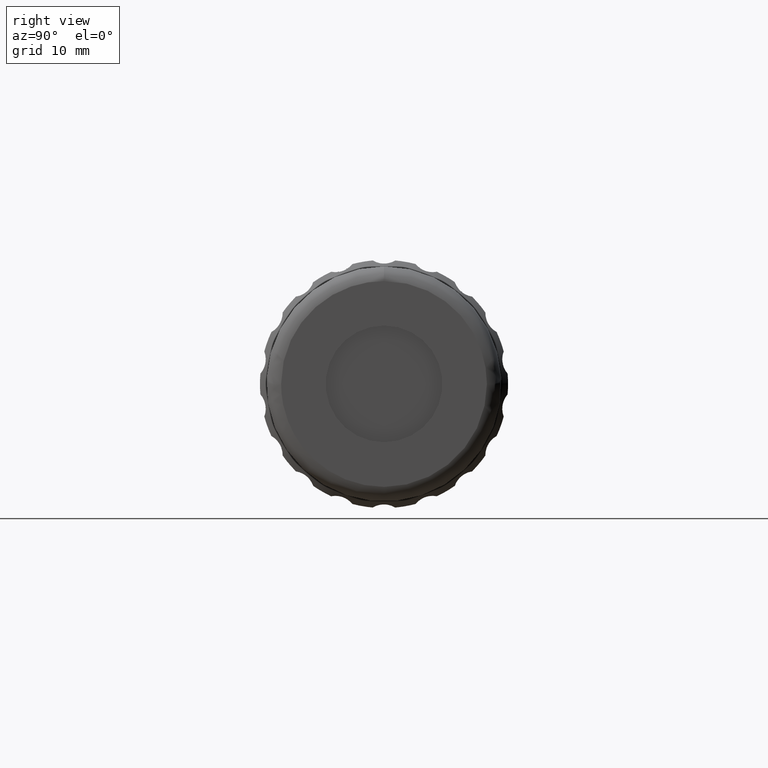
[diagram: clean part render]
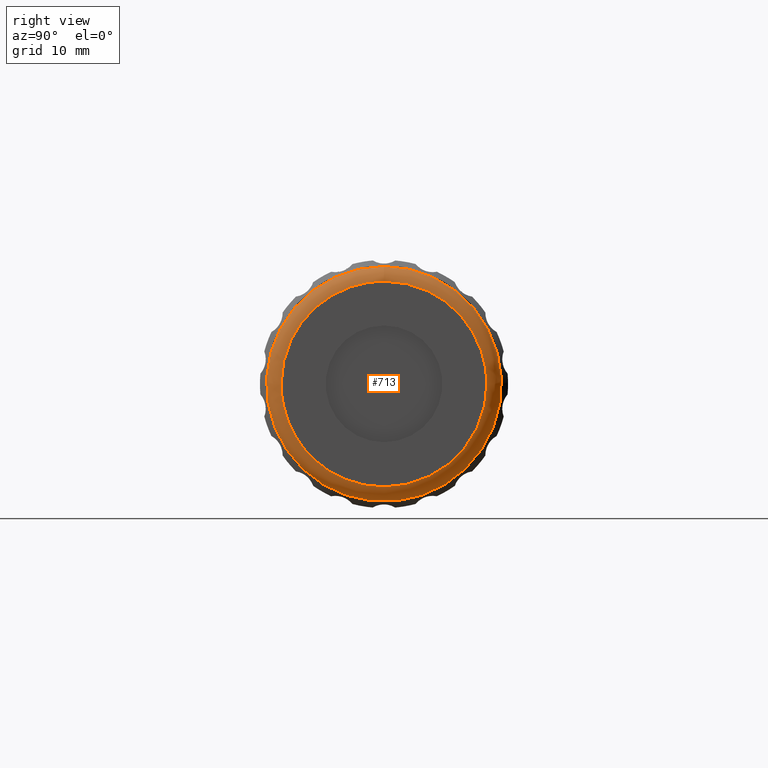
[diagram: same view with one face highlighted and labeled with its STEP entity id]
A machine part, right view. The second image highlights one B-rep face of the part: STEP entity #713.
In plain terms, the highlighted face is a freeform B-spline surface patch.
Its self-contained STEP definition (entity closure, byte-faithful):
#3 = CARTESIAN_POINT ( 'NONE',  ( 95.33704000000001599, 60.12096199999999868, 0.000000000000000000 ) ) ;
#38 = EDGE_CURVE ( 'NONE', #1662, #1408, #1439, .T. ) ;
#60 =( BOUNDED_CURVE ( )  B_SPLINE_CURVE ( 3, ( #256, #1105, #2016, #478 ),
 .UNSPECIFIED., .F., .T. ) 
 B_SPLINE_CURVE_WITH_KNOTS ( ( 4, 4 ),
 ( 0.000000000000000000, 1.000000000000000000 ),
 .UNSPECIFIED. ) 
 CURVE ( )  GEOMETRIC_REPRESENTATION_ITEM ( )  RATIONAL_B_SPLINE_CURVE ( ( 1.000000000000000000, 0.8047378541243649375, 0.8047378541243649375, 1.000000000000000000 ) ) 
 REPRESENTATION_ITEM ( '' )  );
#69 = EDGE_CURVE ( 'NONE', #1408, #157, #528, .T. ) ;
#117 = CARTESIAN_POINT ( 'NONE',  ( 94.50861287525381726, 29.92096199999999584, -32.20000000000000284 ) ) ;
#138 = CARTESIAN_POINT ( 'NONE',  ( 95.33703999999998757, 30.74938912474618391, 30.54314575050763025 ) ) ;
#157 = VERTEX_POINT ( 'NONE', #1452 ) ;
#208 = CARTESIAN_POINT ( 'NONE',  ( 95.33704000000001599, 60.12096200000000579, -28.19999999999999929 ) ) ;
#223 =( BOUNDED_SURFACE ( )  B_SPLINE_SURFACE ( 3, 3, ( 
 ( #1167, #1339, #1813, #471, #1692, #1002, #969 ),
 ( #805, #1158, #117, #2208, #662, #1851, #309 ),
 ( #2168, #494, #2047, #1487, #138, #2177, #624 ),
 ( #637, #795, #826, #2036, #1306, #989, #1513 ) ),
 .UNSPECIFIED., .F., .T., .T. ) 
 B_SPLINE_SURFACE_WITH_KNOTS ( ( 4, 4 ),
 ( 4, 3, 4 ),
 ( 0.000000000000000000, 1.000000000000000000 ),
 ( 0.000000000000000000, 0.5000000000000000000, 1.000000000000000000 ),
 .UNSPECIFIED. ) 
 GEOMETRIC_REPRESENTATION_ITEM ( )  RATIONAL_B_SPLINE_SURFACE ( (
 ( 1.000000000000000000, 0.3333333333333333148, 0.3333333333333333148, 1.000000000000000000, 0.3333333333333333148, 0.3333333333333333148, 1.000000000000000000),
 ( 0.8047378541243649375, 0.2682459513747882940, 0.2682459513747882940, 0.8047378541243649375, 0.2682459513747882940, 0.2682459513747882940, 0.8047378541243649375),
 ( 0.8047378541243649375, 0.2682459513747882940, 0.2682459513747882940, 0.8047378541243649375, 0.2682459513747882940, 0.2682459513747882940, 0.8047378541243649375),
 ( 1.000000000000000000, 0.3333333333333333148, 0.3333333333333333148, 1.000000000000000000, 0.3333333333333333148, 0.3333333333333333148, 1.000000000000000000) ) ) 
 REPRESENTATION_ITEM ( '' )  SURFACE ( )  );
#256 = CARTESIAN_POINT ( 'NONE',  ( 95.33704000000001599, 46.02096199999999726, 14.10000000000000142 ) ) ;
#285 = FACE_OUTER_BOUND ( 'NONE', #1715, .T. ) ;
#309 = CARTESIAN_POINT ( 'NONE',  ( 94.50861287525381726, 62.12096199999999868, 0.000000000000000000 ) ) ;
#370 = CARTESIAN_POINT ( 'NONE',  ( 95.33704000000000178, 31.92096199999999584, 8.259588770539357583 ) ) ;
#411 = EDGE_CURVE ( 'NONE', #157, #1662, #60, .T. ) ;
#449 = ORIENTED_EDGE ( 'NONE', *, *, #38, .T. ) ;
#471 = CARTESIAN_POINT ( 'NONE',  ( 93.33704000000001599, 29.92096199999999584, 0.000000000000000000 ) ) ;
#478 = CARTESIAN_POINT ( 'NONE',  ( 95.33704000000001599, 60.12096199999999868, 0.000000000000000000 ) ) ;
#482 = FACE_OUTER_BOUND ( 'NONE', #786, .T. ) ;
#494 = CARTESIAN_POINT ( 'NONE',  ( 95.33703999999998757, 61.29253487525381416, -30.54314575050762315 ) ) ;
#528 =( BOUNDED_CURVE ( )  B_SPLINE_CURVE ( 3, ( #1743, #370, #716, #2087 ),
 .UNSPECIFIED., .F., .F. ) 
 B_SPLINE_CURVE_WITH_KNOTS ( ( 4, 4 ),
 ( 0.000000000000000000, 1.000000000000000000 ),
 .UNSPECIFIED. ) 
 CURVE ( )  GEOMETRIC_REPRESENTATION_ITEM ( )  RATIONAL_B_SPLINE_CURVE ( ( 1.000000000000000000, 0.8047378541243649375, 0.8047378541243649375, 1.000000000000000000 ) ) 
 REPRESENTATION_ITEM ( '' )  );
#624 = CARTESIAN_POINT ( 'NONE',  ( 95.33704000000000178, 61.29253487525379995, 0.000000000000000000 ) ) ;
#637 = CARTESIAN_POINT ( 'NONE',  ( 95.33704000000001599, 60.12096199999999868, 0.000000000000000000 ) ) ;
#662 = CARTESIAN_POINT ( 'NONE',  ( 94.50861287525381726, 29.92096199999999584, 32.20000000000000284 ) ) ;
#713 = ADVANCED_FACE ( 'NONE', ( #285, #482 ), #223, .T. ) ;
#716 = CARTESIAN_POINT ( 'NONE',  ( 95.33704000000000178, 37.76137322946063790, 14.09999999999999964 ) ) ;
#725 = CARTESIAN_POINT ( 'NONE',  ( 95.33704000000001599, 60.12096199999999868, 0.000000000000000000 ) ) ;
#786 = EDGE_LOOP ( 'NONE', ( #1998 ) ) ;
#795 = CARTESIAN_POINT ( 'NONE',  ( 95.33704000000001599, 60.12096199999999868, -28.20000000000000284 ) ) ;
#805 = CARTESIAN_POINT ( 'NONE',  ( 94.50861287525381726, 62.12096199999999868, 0.000000000000000000 ) ) ;
#826 = CARTESIAN_POINT ( 'NONE',  ( 95.33704000000001599, 31.92096199999999229, -28.20000000000000284 ) ) ;
#849 = CARTESIAN_POINT ( 'NONE',  ( 95.33704000000001599, 31.92096199999999584, -1.036051192078660836E-15 ) ) ;
#857 = DIRECTION ( 'NONE',  ( -1.000000000000000000, 0.000000000000000000, 0.000000000000000000 ) ) ;
#860 = ORIENTED_EDGE ( 'NONE', *, *, #411, .T. ) ;
#894 = CARTESIAN_POINT ( 'NONE',  ( 95.33704000000001599, 31.92096199999999584, -28.19999999999999929 ) ) ;
#969 = CARTESIAN_POINT ( 'NONE',  ( 93.33704000000001599, 62.12096199999999868, 0.000000000000000000 ) ) ;
#970 = ORIENTED_EDGE ( 'NONE', *, *, #69, .T. ) ;
#989 = CARTESIAN_POINT ( 'NONE',  ( 95.33704000000001599, 60.12096199999999868, 28.20000000000000284 ) ) ;
#1002 = CARTESIAN_POINT ( 'NONE',  ( 93.33704000000000178, 62.12096200000000579, 32.20000000000000284 ) ) ;
#1018 = CARTESIAN_POINT ( 'NONE',  ( 93.33704000000001599, 46.02096199999999726, 0.000000000000000000 ) ) ;
#1105 = CARTESIAN_POINT ( 'NONE',  ( 95.33704000000000178, 54.28055077053935662, 14.09999999999999964 ) ) ;
#1158 = CARTESIAN_POINT ( 'NONE',  ( 94.50861287525381726, 62.12096199999999868, -32.20000000000000284 ) ) ;
#1167 = CARTESIAN_POINT ( 'NONE',  ( 93.33704000000001599, 62.12096199999999868, 0.000000000000000000 ) ) ;
#1209 = CIRCLE ( 'NONE', #1423, 16.10000000000000142 ) ;
#1306 = CARTESIAN_POINT ( 'NONE',  ( 95.33704000000001599, 31.92096199999999229, 28.20000000000000284 ) ) ;
#1339 = CARTESIAN_POINT ( 'NONE',  ( 93.33704000000000178, 62.12096200000000579, -32.20000000000000284 ) ) ;
#1408 = VERTEX_POINT ( 'NONE', #1606 ) ;
#1423 = AXIS2_PLACEMENT_3D ( 'NONE', #1018, #857, #1541 ) ;
#1439 =( BOUNDED_CURVE ( )  B_SPLINE_CURVE ( 3, ( #725, #208, #894, #849 ),
 .UNSPECIFIED., .F., .F. ) 
 B_SPLINE_CURVE_WITH_KNOTS ( ( 4, 4 ),
 ( 0.000000000000000000, 1.000000000000000000 ),
 .UNSPECIFIED. ) 
 CURVE ( )  GEOMETRIC_REPRESENTATION_ITEM ( )  RATIONAL_B_SPLINE_CURVE ( ( 1.000000000000000000, 0.3333333333333333703, 0.3333333333333333703, 1.000000000000000000 ) ) 
 REPRESENTATION_ITEM ( '' )  );
#1452 = CARTESIAN_POINT ( 'NONE',  ( 95.33704000000001599, 46.02096199999999726, 14.10000000000000142 ) ) ;
#1487 = CARTESIAN_POINT ( 'NONE',  ( 95.33704000000000178, 30.74938912474618391, 0.000000000000000000 ) ) ;
#1513 = CARTESIAN_POINT ( 'NONE',  ( 95.33704000000001599, 60.12096199999999868, 0.000000000000000000 ) ) ;
#1541 = DIRECTION ( 'NONE',  ( 0.000000000000000000, 0.000000000000000000, 1.000000000000000000 ) ) ;
#1582 = VERTEX_POINT ( 'NONE', #1724 ) ;
#1606 = CARTESIAN_POINT ( 'NONE',  ( 95.33704000000001599, 31.92096199999999584, -1.036051192078660836E-15 ) ) ;
#1662 = VERTEX_POINT ( 'NONE', #3 ) ;
#1692 = CARTESIAN_POINT ( 'NONE',  ( 93.33704000000000178, 29.92096199999999584, 32.20000000000000284 ) ) ;
#1693 = EDGE_CURVE ( 'NONE', #1582, #1582, #1209, .T. ) ;
#1715 = EDGE_LOOP ( 'NONE', ( #860, #449, #970 ) ) ;
#1724 = CARTESIAN_POINT ( 'NONE',  ( 93.33704000000001599, 46.02096199999999726, 16.10000000000000142 ) ) ;
#1743 = CARTESIAN_POINT ( 'NONE',  ( 95.33704000000001599, 31.92096199999999584, -1.036051192078660836E-15 ) ) ;
#1813 = CARTESIAN_POINT ( 'NONE',  ( 93.33704000000000178, 29.92096199999999584, -32.20000000000000284 ) ) ;
#1851 = CARTESIAN_POINT ( 'NONE',  ( 94.50861287525381726, 62.12096199999999868, 32.20000000000000284 ) ) ;
#1998 = ORIENTED_EDGE ( 'NONE', *, *, #1693, .F. ) ;
#2016 = CARTESIAN_POINT ( 'NONE',  ( 95.33704000000000178, 60.12096199999999868, 8.259588770539359359 ) ) ;
#2036 = CARTESIAN_POINT ( 'NONE',  ( 95.33704000000001599, 31.92096199999999584, 0.000000000000000000 ) ) ;
#2047 = CARTESIAN_POINT ( 'NONE',  ( 95.33703999999998757, 30.74938912474619102, -30.54314575050762315 ) ) ;
#2087 = CARTESIAN_POINT ( 'NONE',  ( 95.33704000000001599, 46.02096199999999726, 14.10000000000000142 ) ) ;
#2168 = CARTESIAN_POINT ( 'NONE',  ( 95.33704000000000178, 61.29253487525379995, 0.000000000000000000 ) ) ;
#2177 = CARTESIAN_POINT ( 'NONE',  ( 95.33703999999998757, 61.29253487525381416, 30.54314575050762315 ) ) ;
#2208 = CARTESIAN_POINT ( 'NONE',  ( 94.50861287525381726, 29.92096199999999939, 0.000000000000000000 ) ) ;